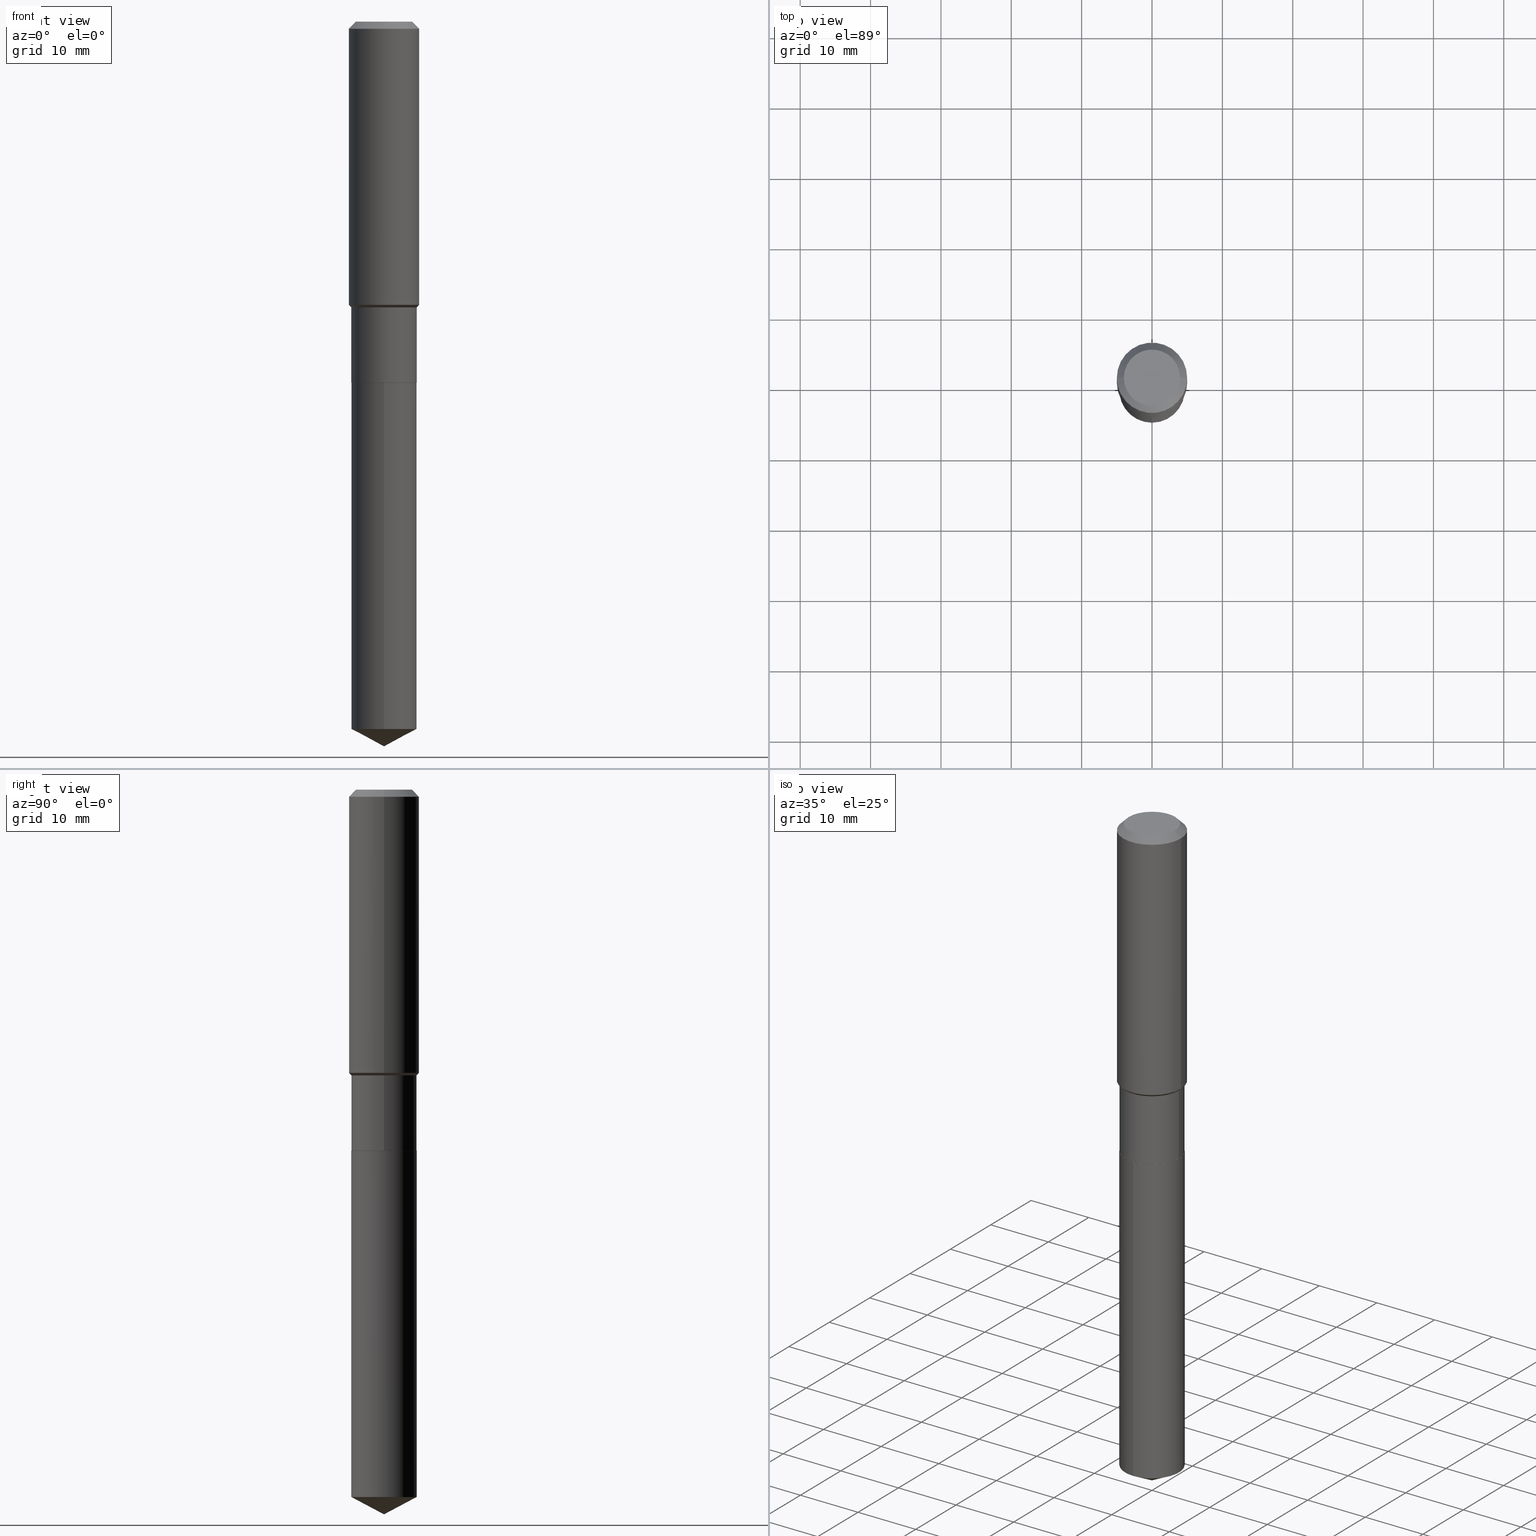
[diagram: canonical four-view strip — front | top / right | iso, engineering-drawing reading convention]
A machine part, canonical four-view strip (front | top / right | iso — engineering-drawing reading convention). The complete STEP part file that produces these views, byte-faithful:
ISO-10303-21;
HEADER;
FILE_DESCRIPTION (( 'STEP AP203' ),
    '1' );
FILE_NAME ('65223.STEP',
    '2024-04-24T21:36:22',
    ( '' ),
    ( '' ),
    'SwSTEP 2.0',
    'SolidWorks 2023',
    '' );
FILE_SCHEMA (( 'CONFIG_CONTROL_DESIGN' ));
ENDSEC;

DATA;
#1 = DIRECTION ( 'NONE',  ( 1.000000000000000000, -6.982962677686265922E-15, 0.000000000000000000 ) ) ;
#2 = FACE_OUTER_BOUND ( 'NONE', #45, .T. ) ;
#3 = CC_DESIGN_SECURITY_CLASSIFICATION ( #446, ( #374 ) ) ;
#4 = DIRECTION ( 'NONE',  ( 0.000000000000000000, 0.000000000000000000, 1.000000000000000000 ) ) ;
#5 = DIRECTION ( 'NONE',  ( -2.445468806185136597E-29, 3.491481338843145583E-15, 1.000000000000000000 ) ) ;
#6 = LINE ( 'NONE', #233, #108 ) ;
#7 = CC_DESIGN_PERSON_AND_ORGANIZATION_ASSIGNMENT ( #113, #193, ( #110 ) ) ;
#8 = ORIENTED_EDGE ( 'NONE', *, *, #369, .F. ) ;
#9 = CARTESIAN_POINT ( 'NONE',  ( 0.000000000000000000, 0.000000000000000000, 0.000000000000000000 ) ) ;
#10 = EDGE_CURVE ( 'NONE', #14, #320, #252, .T. ) ;
#11 = DIRECTION ( 'NONE',  ( -2.445468806185136597E-29, 3.491481338843145583E-15, 1.000000000000000000 ) ) ;
#12 = VERTEX_POINT ( 'NONE', #247 ) ;
#13 = CARTESIAN_POINT ( 'NONE',  ( -0.1968500000000002192, -4.134596250454857650E-15, -1.584799999999999764 ) ) ;
#14 = VERTEX_POINT ( 'NONE', #475 ) ;
#15 = DIRECTION ( 'NONE',  ( -2.445468806185136597E-29, 3.491481338843145583E-15, 1.000000000000000000 ) ) ;
#16 = ORIENTED_EDGE ( 'NONE', *, *, #220, .T. ) ;
#17 = DIRECTION ( 'NONE',  ( -6.165590087286837607E-15, -0.8829475928589268774, 0.4694715627858909723 ) ) ;
#18 = EDGE_CURVE ( 'NONE', #235, #352, #66, .T. ) ;
#19 = ORIENTED_EDGE ( 'NONE', *, *, #214, .T. ) ;
#20 = CARTESIAN_POINT ( 'NONE',  ( 0.1825499999999999623, -8.326135548739243343E-15, -2.019600000000000062 ) ) ;
#21 = CIRCLE ( 'NONE', #154, 0.1830499999999999905 ) ;
#22 = LINE ( 'NONE', #221, #322 ) ;
#23 = ORIENTED_EDGE ( 'NONE', *, *, #443, .F. ) ;
#24 = ADVANCED_FACE ( 'NONE', ( #219 ), #370, .T. ) ;
#25 = EDGE_LOOP ( 'NONE', ( #477, #428, #316, #482 ) ) ;
#26 = FACE_OUTER_BOUND ( 'NONE', #124, .T. ) ;
#27 = EDGE_CURVE ( 'NONE', #139, #326, #213, .T. ) ;
#28 = CIRCLE ( 'NONE', #91, 0.1968500000000000250 ) ;
#29 = LINE ( 'NONE', #485, #479 ) ;
#30 = EDGE_CURVE ( 'NONE', #139, #14, #22, .T. ) ;
#31 = DIRECTION ( 'NONE',  ( -6.982962677686264344E-15, -1.000000000000000000, 2.984810700534567995E-15 ) ) ;
#32 = PERSON_AND_ORGANIZATION ( #367, #180 ) ;
#33 = LINE ( 'NONE', #144, #255 ) ;
#34 = COORDINATED_UNIVERSAL_TIME_OFFSET ( 5, 0, .BEHIND. ) ;
#35 = AXIS2_PLACEMENT_3D ( 'NONE', #450, #4, #106 ) ;
#36 = DIRECTION ( 'NONE',  ( -2.445468806185136597E-29, 3.491481338843145583E-15, 1.000000000000000000 ) ) ;
#37 = CARTESIAN_POINT ( 'NONE',  ( 4.937646066568409466E-29, -7.049649971258195757E-15, -2.019099999999999895 ) ) ;
#38 = VECTOR ( 'NONE', #327, 39.37007874015748854 ) ;
#39 = DIRECTION ( 'NONE',  ( -6.982962677686265922E-15, -1.000000000000000000, 3.541896320645551402E-15 ) ) ;
#40 = APPROVAL ( #182, 'UNSPECIFIED' ) ;
#41 =( LENGTH_UNIT ( ) NAMED_UNIT ( * ) SI_UNIT ( $, .METRE. ) );
#42 = AXIS2_PLACEMENT_3D ( 'NONE', #476, #125, #350 ) ;
#43 = CONICAL_SURFACE ( 'NONE', #361, 0.1968500000000000250, 0.7853981633974447263 ) ;
#44 = EDGE_CURVE ( 'NONE', #253, #404, #294, .T. ) ;
#45 = EDGE_LOOP ( 'NONE', ( #155, #63, #422, #217 ) ) ;
#46 = CARTESIAN_POINT ( 'NONE',  ( 1.300648477808960353E-15, 0.1830499999999929406, -2.019600000000000506 ) ) ;
#47 = DATE_AND_TIME ( #388, #438 ) ;
#48 = ORIENTED_EDGE ( 'NONE', *, *, #103, .F. ) ;
#49 = LINE ( 'NONE', #168, #351 ) ;
#50 = APPROVAL ( #52, 'UNSPECIFIED' ) ;
#51 = AXIS2_PLACEMENT_3D ( 'NONE', #293, #68, #31 ) ;
#52 = APPROVAL_STATUS ( 'not_yet_approved' ) ;
#53 = EDGE_LOOP ( 'NONE', ( #229, #397, #215, #116 ) ) ;
#54 = DIRECTION ( 'NONE',  ( -2.445468806185136877E-29, 3.491481338843145188E-15, 1.000000000000000000 ) ) ;
#55 = AXIS2_PLACEMENT_3D ( 'NONE', #111, #336, #149 ) ;
#56 = ORIENTED_EDGE ( 'NONE', *, *, #191, .T. ) ;
#57 = DIRECTION ( 'NONE',  ( -2.445468806185136597E-29, 3.491481338843145583E-15, 1.000000000000000000 ) ) ;
#58 = PERSON_AND_ORGANIZATION ( #367, #180 ) ;
#59 = ORIENTED_EDGE ( 'NONE', *, *, #443, .T. ) ;
#60 = CARTESIAN_POINT ( 'NONE',  ( 0.000000000000000000, 0.000000000000000000, 0.000000000000000000 ) ) ;
#61 = ORIENTED_EDGE ( 'NONE', *, *, #251, .F. ) ;
#62 =( GEOMETRIC_REPRESENTATION_CONTEXT ( 3 ) GLOBAL_UNCERTAINTY_ASSIGNED_CONTEXT ( ( #171 ) ) GLOBAL_UNIT_ASSIGNED_CONTEXT ( ( #225, #335, #375 ) ) REPRESENTATION_CONTEXT ( 'NONE', 'WORKASPACE' ) );
#63 = ORIENTED_EDGE ( 'NONE', *, *, #305, .T. ) ;
#64 = APPROVAL_PERSON_ORGANIZATION ( #222, #364, #310 ) ;
#65 = CARTESIAN_POINT ( 'NONE',  ( 4.938868800971501707E-29, -7.051395711927616472E-15, -2.019600000000000062 ) ) ;
#66 = LINE ( 'NONE', #250, #38 ) ;
#67 = AXIS2_PLACEMENT_3D ( 'NONE', #353, #15, #280 ) ;
#68 = DIRECTION ( 'NONE',  ( -2.445495321874143772E-29, 3.491443366867307892E-15, 1.000000000000000000 ) ) ;
#69 = COORDINATED_UNIVERSAL_TIME_OFFSET ( 5, 0, .BEHIND. ) ;
#70 = AXIS2_PLACEMENT_3D ( 'NONE', #360, #287, #243 ) ;
#71 = CARTESIAN_POINT ( 'NONE',  ( 4.938868800971501707E-29, -7.051395711927616472E-15, -2.019600000000000062 ) ) ;
#72 = CARTESIAN_POINT ( 'NONE',  ( 9.627810689950954155E-31, -1.374596203102556547E-16, -0.03937000000000029365 ) ) ;
#73 = LENGTH_MEASURE_WITH_UNIT ( LENGTH_MEASURE( 0.02539999999999999897 ), #41 );
#74 = DIRECTION ( 'NONE',  ( 6.273719981627768443E-15, 0.8829475928589300970, 0.4694715627858847551 ) ) ;
#75 = CARTESIAN_POINT ( 'NONE',  ( 0.1968500000000000250, -1.487948651171581601E-15, -0.03937000000000029365 ) ) ;
#76 = CALENDAR_DATE ( 2024, 24, 4 ) ;
#77 = CIRCLE ( 'NONE', #78, 0.1574800000000000089 ) ;
#78 = AXIS2_PLACEMENT_3D ( 'NONE', #466, #434, #148 ) ;
#79 = VERTEX_POINT ( 'NONE', #442 ) ;
#80 = DIRECTION ( 'NONE',  ( 1.000000000000000000, -6.982962677686265922E-15, 0.000000000000000000 ) ) ;
#81 = CC_DESIGN_PERSON_AND_ORGANIZATION_ASSIGNMENT ( #384, #238, ( #446 ) ) ;
#82 = APPROVAL_DATE_TIME ( #274, #40 ) ;
#83 = EDGE_LOOP ( 'NONE', ( #268, #59 ) ) ;
#84 = CARTESIAN_POINT ( 'NONE',  ( 4.938868800971501707E-29, -7.051395711927616472E-15, -2.019600000000000062 ) ) ;
#85 = PERSON_AND_ORGANIZATION ( #367, #180 ) ;
#86 = VERTEX_POINT ( 'NONE', #439 ) ;
#87 = LINE ( 'NONE', #390, #109 ) ;
#88 = AXIS2_PLACEMENT_3D ( 'NONE', #455, #343, #39 ) ;
#89 = ORIENTED_EDGE ( 'NONE', *, *, #157, .F. ) ;
#90 = DIRECTION ( 'NONE',  ( -2.445495321874143772E-29, 3.491443366867307892E-15, 1.000000000000000000 ) ) ;
#91 = AXIS2_PLACEMENT_3D ( 'NONE', #341, #5, #80 ) ;
#92 = ORIENTED_EDGE ( 'NONE', *, *, #114, .T. ) ;
#93 = DIRECTION ( 'NONE',  ( -2.445468806185136597E-29, 3.491481338843145583E-15, 1.000000000000000000 ) ) ;
#94 = CARTESIAN_POINT ( 'NONE',  ( 0.1968500000000001082, -1.374596203102542397E-15, 9.598753983154305062E-30 ) ) ;
#95 = DIRECTION ( 'NONE',  ( -2.445495321874143772E-29, 3.491443366867307892E-15, 1.000000000000000000 ) ) ;
#96 = DESIGN_CONTEXT ( 'detailed design', #249, 'design' ) ;
#97 = EDGE_CURVE ( 'NONE', #318, #12, #332, .T. ) ;
#98 = ORIENTED_EDGE ( 'NONE', *, *, #220, .F. ) ;
#99 = AXIS2_PLACEMENT_3D ( 'NONE', #299, #451, #261 ) ;
#100 = VERTEX_POINT ( 'NONE', #101 ) ;
#101 = CARTESIAN_POINT ( 'NONE',  ( 0.1574800000000000089, -1.284169937930321189E-15, 3.855188123724205385E-18 ) ) ;
#102 = EDGE_LOOP ( 'NONE', ( #436, #196, #272 ) ) ;
#103 = EDGE_CURVE ( 'NONE', #400, #79, #29, .T. ) ;
#104 = AXIS2_PLACEMENT_3D ( 'NONE', #84, #276, #426 ) ;
#105 = DATE_AND_TIME ( #412, #424 ) ;
#106 = DIRECTION ( 'NONE',  ( 1.000000000000000000, 0.000000000000000000, 0.000000000000000000 ) ) ;
#107 = DIRECTION ( 'NONE',  ( -2.445468806185136597E-29, 3.491481338843145583E-15, 1.000000000000000000 ) ) ;
#108 = VECTOR ( 'NONE', #150, 39.37007874015748143 ) ;
#109 = VECTOR ( 'NONE', #54, 39.37007874015748143 ) ;
#110 = PRODUCT_DEFINITION ( 'UNKNOWN', '', #374, #96 ) ;
#111 = CARTESIAN_POINT ( 'NONE',  ( -4.713871149261283817E-47, 6.730158695841841775E-33, 1.927594061857935365E-18 ) ) ;
#112 = DIRECTION ( 'NONE',  ( -2.445495321874143772E-29, 3.491443366867307892E-15, 1.000000000000000000 ) ) ;
#113 = PERSON_AND_ORGANIZATION ( #367, #180 ) ;
#114 = EDGE_CURVE ( 'NONE', #320, #14, #260, .T. ) ;
#115 = PERSON_AND_ORGANIZATION ( #367, #180 ) ;
#116 = ORIENTED_EDGE ( 'NONE', *, *, #214, .F. ) ;
#117 = DIRECTION ( 'NONE',  ( -2.445468806185136597E-29, 3.491481338843145583E-15, 1.000000000000000000 ) ) ;
#118 = CC_DESIGN_DATE_AND_TIME_ASSIGNMENT ( #105, #371, ( #110 ) ) ;
#119 = CLOSED_SHELL ( 'NONE', ( #24, #169, #354, #314, #430 ) ) ;
#120 = AXIS2_PLACEMENT_3D ( 'NONE', #232, #93, #205 ) ;
#121 = ORIENTED_EDGE ( 'NONE', *, *, #311, .F. ) ;
#122 = DIRECTION ( 'NONE',  ( -2.445468806185136597E-29, 3.491481338843145583E-15, 1.000000000000000000 ) ) ;
#123 = APPROVAL_ROLE ( '' ) ;
#124 = EDGE_LOOP ( 'NONE', ( #204, #463 ) ) ;
#125 = DIRECTION ( 'NONE',  ( 2.445468806185136597E-29, -3.491481338843145583E-15, -1.000000000000000000 ) ) ;
#126 = CALENDAR_DATE ( 2024, 24, 4 ) ;
#127 = EDGE_CURVE ( 'NONE', #86, #282, #285, .T. ) ;
#128 = ORIENTED_EDGE ( 'NONE', *, *, #305, .F. ) ;
#129 = DIRECTION ( 'NONE',  ( 1.000000000000000000, -6.982962677686265922E-15, 4.876176775795935232E-29 ) ) ;
#130 = EDGE_LOOP ( 'NONE', ( #23, #16, #312, #231 ) ) ;
#131 = CARTESIAN_POINT ( 'NONE',  ( -0.1574800000000000089, 1.168406772637159618E-15, 3.855188123707939751E-18 ) ) ;
#132 = EDGE_CURVE ( 'NONE', #253, #279, #267, .T. ) ;
#133 = CONICAL_SURFACE ( 'NONE', #342, 0.1830499999999999350, 0.7853981633974482790 ) ;
#134 = CARTESIAN_POINT ( 'NONE',  ( 4.938868800971501707E-29, -7.051395711927616472E-15, -2.019600000000000062 ) ) ;
#135 = FACE_OUTER_BOUND ( 'NONE', #239, .T. ) ;
#136 = EDGE_LOOP ( 'NONE', ( #89, #19, #306, #458 ) ) ;
#137 = CARTESIAN_POINT ( 'NONE',  ( 0.1825499999999999623, -8.326135548739243343E-15, -2.019600000000000062 ) ) ;
#138 = AXIS2_PLACEMENT_3D ( 'NONE', #65, #368, #329 ) ;
#139 = VERTEX_POINT ( 'NONE', #151 ) ;
#140 = EDGE_LOOP ( 'NONE', ( #61, #179, #211 ) ) ;
#141 = DIRECTION ( 'NONE',  ( -2.445468806185136877E-29, 3.491481338843145188E-15, 1.000000000000000000 ) ) ;
#142 = DIRECTION ( 'NONE',  ( 1.000000000000000000, -6.982962677686265922E-15, 4.876176775795935232E-29 ) ) ;
#143 = PERSON_AND_ORGANIZATION ( #367, #180 ) ;
#144 = CARTESIAN_POINT ( 'NONE',  ( 0.1830499999999999350, -6.859713386425123547E-15, -1.598600000000000021 ) ) ;
#145 = DIRECTION ( 'NONE',  ( 1.000000000000000000, -6.982962677686265922E-15, 0.000000000000000000 ) ) ;
#146 = CIRCLE ( 'NONE', #447, 0.1830499999999999350 ) ;
#147 = DIRECTION ( 'NONE',  ( 0.7071067811865474617, -2.468850131082256666E-15, 0.7071067811865474617 ) ) ;
#148 = DIRECTION ( 'NONE',  ( 1.000000000000000000, -6.982962677686265922E-15, 4.876223630392693006E-29 ) ) ;
#149 = DIRECTION ( 'NONE',  ( -1.000000000000000000, 6.982962677686265922E-15, -4.876176775795935793E-29 ) ) ;
#150 = DIRECTION ( 'NONE',  ( -2.445468806185136877E-29, 3.491481338843145188E-15, 1.000000000000000000 ) ) ;
#151 = CARTESIAN_POINT ( 'NONE',  ( -1.278231318150373834E-15, -0.1830500000000137850, -3.957770588534366585 ) ) ;
#152 = VERTEX_POINT ( 'NONE', #183 ) ;
#153 = FACE_OUTER_BOUND ( 'NONE', #471, .T. ) ;
#154 = AXIS2_PLACEMENT_3D ( 'NONE', #37, #187, #145 ) ;
#155 = ORIENTED_EDGE ( 'NONE', *, *, #435, .F. ) ;
#156 = FACE_OUTER_BOUND ( 'NONE', #140, .T. ) ;
#157 = EDGE_CURVE ( 'NONE', #352, #12, #6, .T. ) ;
#158 = PERSON_AND_ORGANIZATION_ROLE ( 'design_supplier' ) ;
#159 = ORIENTED_EDGE ( 'NONE', *, *, #30, .F. ) ;
#160 = DIRECTION ( 'NONE',  ( -6.982962677686264344E-15, -1.000000000000000000, 2.984810700534567995E-15 ) ) ;
#161 = CC_DESIGN_PERSON_AND_ORGANIZATION_ASSIGNMENT ( #85, #228, ( #374 ) ) ;
#162 = LOCAL_TIME ( 17, 36, 22.00000000000000000, #69 ) ;
#163 = EDGE_LOOP ( 'NONE', ( #363, #226, #218, #408 ) ) ;
#164 = FACE_OUTER_BOUND ( 'NONE', #130, .T. ) ;
#165 = CIRCLE ( 'NONE', #175, 0.1830499999999999905 ) ;
#166 = CALENDAR_DATE ( 2024, 24, 4 ) ;
#167 = ORIENTED_EDGE ( 'NONE', *, *, #300, .T. ) ;
#168 = CARTESIAN_POINT ( 'NONE',  ( 9.916620977560802694E-29, -1.415830537338842457E-14, -4.055100000000000371 ) ) ;
#169 = ADVANCED_FACE ( 'NONE', ( #198 ), #301, .T. ) ;
#170 = AXIS2_PLACEMENT_3D ( 'NONE', #72, #224, #373 ) ;
#171 = UNCERTAINTY_MEASURE_WITH_UNIT (LENGTH_MEASURE( 1.000000000000000082E-05 ), #225, 'distance_accuracy_value', 'NONE');
#172 = CARTESIAN_POINT ( 'NONE',  ( 4.938868800971501707E-29, -7.051395711927616472E-15, -2.019600000000000062 ) ) ;
#173 = EDGE_LOOP ( 'NONE', ( #421, #200, #345, #159 ) ) ;
#174 = CARTESIAN_POINT ( 'NONE',  ( 4.938868800971501707E-29, -7.051395711927616472E-15, -2.019600000000000062 ) ) ;
#175 = AXIS2_PLACEMENT_3D ( 'NONE', #380, #112, #309 ) ;
#176 = DIRECTION ( 'NONE',  ( -2.445468806185136597E-29, 3.491481338843145583E-15, 1.000000000000000000 ) ) ;
#177 = DIRECTION ( 'NONE',  ( 0.7071067811865450192, -7.319954787623246579E-15, -0.7071067811865500152 ) ) ;
#178 = CONICAL_SURFACE ( 'NONE', #379, 0.1825499999999999623, 0.7853981633975507526 ) ;
#179 = ORIENTED_EDGE ( 'NONE', *, *, #410, .T. ) ;
#180 = ORGANIZATION ( 'UNSPECIFIED', 'UNSPECIFIED', '' ) ;
#181 = DIRECTION ( 'NONE',  ( -0.7071067811866199593, 7.493145998870616062E-15, 0.7071067811864750752 ) ) ;
#182 = APPROVAL_STATUS ( 'not_yet_approved' ) ;
#183 = CARTESIAN_POINT ( 'NONE',  ( 9.916728079731841685E-29, -1.415815199698362107E-14, -4.055100000000000371 ) ) ;
#184 = EDGE_CURVE ( 'NONE', #326, #139, #165, .T. ) ;
#185 = CONICAL_SURFACE ( 'NONE', #409, 74.04434902938373853, 1.082104136236487602 ) ;
#186 = DATE_AND_TIME ( #76, #308 ) ;
#187 = DIRECTION ( 'NONE',  ( -2.445468806185136597E-29, 3.491481338843145583E-15, 1.000000000000000000 ) ) ;
#188 = ADVANCED_BREP_SHAPE_REPRESENTATION ( '65223', ( #444, #278, #35 ), #62 ) ;
#189 = APPLICATION_PROTOCOL_DEFINITION ( 'international standard', 'config_control_design', 1994, #391 ) ;
#190 = PLANE ( 'NONE',  #55 ) ;
#191 = EDGE_CURVE ( 'NONE', #79, #235, #146, .T. ) ;
#192 = AXIS2_PLACEMENT_3D ( 'NONE', #60, #356, #129 ) ;
#193 = PERSON_AND_ORGANIZATION_ROLE ( 'creator' ) ;
#194 = DIRECTION ( 'NONE',  ( 1.000000000000000000, -6.982962677686267499E-15, 0.000000000000000000 ) ) ;
#195 = CC_DESIGN_APPROVAL ( #364, ( #110 ) ) ;
#196 = ORIENTED_EDGE ( 'NONE', *, *, #251, .T. ) ;
#197 = CARTESIAN_POINT ( 'NONE',  ( 1.300648477808959564E-15, 0.1830499999999861127, -3.957770588534367917 ) ) ;
#198 = FACE_OUTER_BOUND ( 'NONE', #102, .T. ) ;
#199 = SHAPE_DEFINITION_REPRESENTATION ( #461, #188 ) ;
#200 = ORIENTED_EDGE ( 'NONE', *, *, #311, .T. ) ;
#201 = DIRECTION ( 'NONE',  ( 1.000000000000000000, -6.982962677686267499E-15, 0.000000000000000000 ) ) ;
#202 = AXIS2_PLACEMENT_3D ( 'NONE', #134, #176, #288 ) ;
#203 = CIRCLE ( 'NONE', #474, 0.1830499999999999350 ) ;
#204 = ORIENTED_EDGE ( 'NONE', *, *, #460, .F. ) ;
#205 = DIRECTION ( 'NONE',  ( 1.000000000000000000, -6.982962677686267499E-15, 0.000000000000000000 ) ) ;
#206 = EDGE_CURVE ( 'NONE', #318, #100, #77, .T. ) ;
#207 = SECURITY_CLASSIFICATION_LEVEL ( 'unclassified' ) ;
#208 = ORIENTED_EDGE ( 'NONE', *, *, #44, .T. ) ;
#209 = DIRECTION ( 'NONE',  ( 1.000000000000000000, -6.982962677686265922E-15, 0.000000000000000000 ) ) ;
#210 = COORDINATED_UNIVERSAL_TIME_OFFSET ( 5, 0, .BEHIND. ) ;
#211 = ORIENTED_EDGE ( 'NONE', *, *, #184, .F. ) ;
#212 = CYLINDRICAL_SURFACE ( 'NONE', #315, 0.1968500000000001082 ) ;
#213 = CIRCLE ( 'NONE', #420, 0.1830499999999999905 ) ;
#214 = EDGE_CURVE ( 'NONE', #352, #86, #372, .T. ) ;
#215 = ORIENTED_EDGE ( 'NONE', *, *, #270, .T. ) ;
#216 = AXIS2_PLACEMENT_3D ( 'NONE', #416, #36, #257 ) ;
#217 = ORIENTED_EDGE ( 'NONE', *, *, #399, .F. ) ;
#218 = ORIENTED_EDGE ( 'NONE', *, *, #256, .F. ) ;
#219 = FACE_OUTER_BOUND ( 'NONE', #173, .T. ) ;
#220 = EDGE_CURVE ( 'NONE', #100, #282, #401, .T. ) ;
#221 = CARTESIAN_POINT ( 'NONE',  ( -1.278231318150421166E-15, -0.1830500000000070127, -2.019599999999999618 ) ) ;
#222 = PERSON_AND_ORGANIZATION ( #367, #180 ) ;
#223 = CYLINDRICAL_SURFACE ( 'NONE', #216, 0.1968500000000001082 ) ;
#224 = DIRECTION ( 'NONE',  ( -2.445468806185136597E-29, 3.491481338843145583E-15, 1.000000000000000000 ) ) ;
#225 =( CONVERSION_BASED_UNIT ( 'INCH', #73 ) LENGTH_UNIT ( ) NAMED_UNIT ( #331 ) );
#226 = ORIENTED_EDGE ( 'NONE', *, *, #157, .T. ) ;
#227 = PRODUCT ( '65223', '65223', '', ( #338 ) ) ;
#228 = PERSON_AND_ORGANIZATION_ROLE ( 'creator' ) ;
#229 = ORIENTED_EDGE ( 'NONE', *, *, #18, .F. ) ;
#230 = FACE_OUTER_BOUND ( 'NONE', #389, .T. ) ;
#231 = ORIENTED_EDGE ( 'NONE', *, *, #97, .F. ) ;
#232 = CARTESIAN_POINT ( 'NONE',  ( 3.909326433567559047E-29, -5.581482068274652880E-15, -1.598600000000000021 ) ) ;
#233 = CARTESIAN_POINT ( 'NONE',  ( -0.1968500000000001082, 1.398703375343757985E-15, -9.682923725166787881E-30 ) ) ;
#234 = VECTOR ( 'NONE', #177, 39.37007874015748143 ) ;
#235 = VERTEX_POINT ( 'NONE', #265 ) ;
#236 = DIRECTION ( 'NONE',  ( 2.445468806185136597E-29, -3.491481338843145583E-15, -1.000000000000000000 ) ) ;
#237 = ADVANCED_FACE ( 'NONE', ( #453 ), #190, .F. ) ;
#238 = PERSON_AND_ORGANIZATION_ROLE ( 'classification_officer' ) ;
#239 = EDGE_LOOP ( 'NONE', ( #467, #92 ) ) ;
#240 = CARTESIAN_POINT ( 'NONE',  ( 3.909326433567559047E-29, -5.581482068274652880E-15, -1.598600000000000021 ) ) ;
#241 = CC_DESIGN_PERSON_AND_ORGANIZATION_ASSIGNMENT ( #143, #377, ( #227 ) ) ;
#242 = ORIENTED_EDGE ( 'NONE', *, *, #184, .T. ) ;
#243 = DIRECTION ( 'NONE',  ( 1.000000000000000000, -6.982962677686265922E-15, 0.000000000000000000 ) ) ;
#244 = APPROVAL_PERSON_ORGANIZATION ( #58, #50, #123 ) ;
#245 = CARTESIAN_POINT ( 'NONE',  ( -0.1825499999999999623, -5.754299947797554442E-15, -2.019600000000000062 ) ) ;
#246 = CARTESIAN_POINT ( 'NONE',  ( -0.1968500000000000250, 1.237136582792286225E-15, -0.03937000000000029365 ) ) ;
#247 = CARTESIAN_POINT ( 'NONE',  ( -0.1968500000000000250, -1.436676247710677524E-15, -0.03937000000000029365 ) ) ;
#248 = EDGE_CURVE ( 'NONE', #400, #279, #297, .T. ) ;
#249 = APPLICATION_CONTEXT ( 'configuration controlled 3d designs of mechanical parts and assemblies' ) ;
#250 = CARTESIAN_POINT ( 'NONE',  ( -0.1830499999999999350, -4.280833590465789952E-15, -1.598600000000000021 ) ) ;
#251 = EDGE_CURVE ( 'NONE', #152, #326, #489, .T. ) ;
#252 = CIRCLE ( 'NONE', #289, 0.1830499999999999905 ) ;
#253 = VERTEX_POINT ( 'NONE', #269 ) ;
#254 = AXIS2_PLACEMENT_3D ( 'NONE', #319, #429, #486 ) ;
#255 = VECTOR ( 'NONE', #147, 39.37007874015748854 ) ;
#256 = EDGE_CURVE ( 'NONE', #282, #12, #28, .T. ) ;
#257 = DIRECTION ( 'NONE',  ( 1.000000000000000000, -6.982962677686266711E-15, 4.876176775795935793E-29 ) ) ;
#258 = ADVANCED_FACE ( 'NONE', ( #2 ), #414, .T. ) ;
#259 = APPROVAL_ROLE ( '' ) ;
#260 = CIRCLE ( 'NONE', #51, 0.1830499999999999905 ) ;
#261 = DIRECTION ( 'NONE',  ( 1.000000000000000000, -6.982962677686264344E-15, 0.000000000000000000 ) ) ;
#262 = CONICAL_SURFACE ( 'NONE', #42, 0.1968500000000000250, 0.7853981633974447263 ) ;
#263 = FACE_OUTER_BOUND ( 'NONE', #136, .T. ) ;
#264 = CARTESIAN_POINT ( 'NONE',  ( 1.300648477808912429E-15, 0.1830499999999929406, -2.019600000000000506 ) ) ;
#265 = CARTESIAN_POINT ( 'NONE',  ( -0.1830499999999999350, -5.014917541957560996E-15, -1.598600000000000021 ) ) ;
#266 = CC_DESIGN_PERSON_AND_ORGANIZATION_ASSIGNMENT ( #115, #158, ( #374 ) ) ;
#267 = LINE ( 'NONE', #245, #376 ) ;
#268 = ORIENTED_EDGE ( 'NONE', *, *, #206, .T. ) ;
#269 = CARTESIAN_POINT ( 'NONE',  ( -0.1825499999999999623, -5.751650720623443241E-15, -2.019600000000000062 ) ) ;
#270 = EDGE_CURVE ( 'NONE', #79, #86, #33, .T. ) ;
#271 = VECTOR ( 'NONE', #90, 39.37007874015748143 ) ;
#272 = ORIENTED_EDGE ( 'NONE', *, *, #27, .F. ) ;
#273 = CYLINDRICAL_SURFACE ( 'NONE', #304, 0.1830499999999999905 ) ;
#274 = DATE_AND_TIME ( #126, #162 ) ;
#275 = ORIENTED_EDGE ( 'NONE', *, *, #270, .F. ) ;
#276 = DIRECTION ( 'NONE',  ( 2.445495321874143492E-29, -3.491443366867307892E-15, -1.000000000000000000 ) ) ;
#277 = COORDINATED_UNIVERSAL_TIME_OFFSET ( 5, 0, .BEHIND. ) ;
#278 = MANIFOLD_SOLID_BREP ( 'Body-Move/Copy2[2]', #334 ) ;
#279 = VERTEX_POINT ( 'NONE', #307 ) ;
#280 = DIRECTION ( 'NONE',  ( 1.000000000000000000, -6.982962677686265922E-15, 4.876223630392693006E-29 ) ) ;
#281 = AXIS2_PLACEMENT_3D ( 'NONE', #339, #107, #142 ) ;
#282 = VERTEX_POINT ( 'NONE', #378 ) ;
#283 = CARTESIAN_POINT ( 'NONE',  ( 9.627810689950954155E-31, -1.374596203102556547E-16, -0.03937000000000029365 ) ) ;
#284 = ADVANCED_FACE ( 'NONE', ( #413 ), #440, .T. ) ;
#285 = LINE ( 'NONE', #94, #328 ) ;
#286 = PLANE ( 'NONE',  #104 ) ;
#287 = DIRECTION ( 'NONE',  ( -2.445468806185136597E-29, 3.491481338843145583E-15, 1.000000000000000000 ) ) ;
#288 = DIRECTION ( 'NONE',  ( 1.000000000000000000, -6.982962677686264344E-15, 0.000000000000000000 ) ) ;
#289 = AXIS2_PLACEMENT_3D ( 'NONE', #172, #445, #406 ) ;
#290 = ORIENTED_EDGE ( 'NONE', *, *, #191, .F. ) ;
#291 = CONICAL_SURFACE ( 'NONE', #120, 0.1830499999999999350, 0.7853981633974482790 ) ;
#292 = DIRECTION ( 'NONE',  ( -6.982962677686264344E-15, -1.000000000000000000, 2.984810700534567995E-15 ) ) ;
#293 = CARTESIAN_POINT ( 'NONE',  ( 4.938868800971501707E-29, -7.051395711927616472E-15, -2.019600000000000062 ) ) ;
#294 = CIRCLE ( 'NONE', #202, 0.1825499999999999623 ) ;
#295 = DIRECTION ( 'NONE',  ( -2.445468806185136877E-29, 3.491481338843145188E-15, 1.000000000000000000 ) ) ;
#296 = DIRECTION ( 'NONE',  ( 1.000000000000000000, -6.982962677686265922E-15, 4.876176775795935793E-29 ) ) ;
#297 = CIRCLE ( 'NONE', #337, 0.1830499999999999905 ) ;
#298 = APPROVAL_DATE_TIME ( #186, #364 ) ;
#299 = CARTESIAN_POINT ( 'NONE',  ( 4.938868800971501707E-29, -7.051395711927616472E-15, -2.019600000000000062 ) ) ;
#300 = EDGE_CURVE ( 'NONE', #12, #282, #488, .T. ) ;
#301 = CONICAL_SURFACE ( 'NONE', #88, 74.04434902938373853, 1.082104136236487602 ) ;
#302 = FACE_OUTER_BOUND ( 'NONE', #25, .T. ) ;
#303 = LINE ( 'NONE', #264, #271 ) ;
#304 = AXIS2_PLACEMENT_3D ( 'NONE', #383, #433, #160 ) ;
#305 = EDGE_CURVE ( 'NONE', #279, #400, #21, .T. ) ;
#306 = ORIENTED_EDGE ( 'NONE', *, *, #127, .T. ) ;
#307 = CARTESIAN_POINT ( 'NONE',  ( -0.1830499999999999905, -5.014917541957560996E-15, -2.019099999999999895 ) ) ;
#308 = LOCAL_TIME ( 17, 36, 22.00000000000000000, #34 ) ;
#309 = DIRECTION ( 'NONE',  ( -6.982962677686264344E-15, -1.000000000000000000, 2.984810700534567995E-15 ) ) ;
#310 = APPROVAL_ROLE ( '' ) ;
#311 = EDGE_CURVE ( 'NONE', #326, #320, #303, .T. ) ;
#312 = ORIENTED_EDGE ( 'NONE', *, *, #256, .T. ) ;
#313 = DIRECTION ( 'NONE',  ( -1.000000000000000000, 6.982962677686265922E-15, 0.000000000000000000 ) ) ;
#314 = ADVANCED_FACE ( 'NONE', ( #230 ), #273, .T. ) ;
#315 = AXIS2_PLACEMENT_3D ( 'NONE', #9, #317, #437 ) ;
#316 = ORIENTED_EDGE ( 'NONE', *, *, #248, .F. ) ;
#317 = DIRECTION ( 'NONE',  ( -2.445468806185136597E-29, 3.491481338843145583E-15, 1.000000000000000000 ) ) ;
#318 = VERTEX_POINT ( 'NONE', #131 ) ;
#319 = CARTESIAN_POINT ( 'NONE',  ( 4.938868800971501707E-29, -7.051395711927616472E-15, -2.019600000000000062 ) ) ;
#320 = VERTEX_POINT ( 'NONE', #46 ) ;
#321 = CARTESIAN_POINT ( 'NONE',  ( 3.875578964042203780E-29, -5.533299625798616226E-15, -1.584799999999999764 ) ) ;
#322 = VECTOR ( 'NONE', #365, 39.37007874015748143 ) ;
#323 = AXIS2_PLACEMENT_3D ( 'NONE', #321, #472, #209 ) ;
#324 = DIRECTION ( 'NONE',  ( -0.7071067811865450192, 2.468850131082230634E-15, -0.7071067811865500152 ) ) ;
#325 = CYLINDRICAL_SURFACE ( 'NONE', #192, 0.1830499999999999905 ) ;
#326 = VERTEX_POINT ( 'NONE', #197 ) ;
#327 = DIRECTION ( 'NONE',  ( -0.7071067811865474617, 7.493145998870352582E-15, 0.7071067811865474617 ) ) ;
#328 = VECTOR ( 'NONE', #295, 39.37007874015748143 ) ;
#329 = DIRECTION ( 'NONE',  ( -6.982962677686264344E-15, -1.000000000000000000, 2.984810700534567995E-15 ) ) ;
#330 = DIRECTION ( 'NONE',  ( -2.438088387897960049E-29, 3.491481338843145188E-15, 1.000000000000000000 ) ) ;
#331 = DIMENSIONAL_EXPONENTS ( 1.000000000000000000, 0.000000000000000000, 0.000000000000000000, 0.000000000000000000, 0.000000000000000000, 0.000000000000000000, 0.000000000000000000 ) ;
#332 = LINE ( 'NONE', #246, #487 ) ;
#333 = ADVANCED_FACE ( 'NONE', ( #423 ), #43, .T. ) ;
#334 = CLOSED_SHELL ( 'NONE', ( #484, #419, #392, #344, #396, #258, #340, #490, #333, #237, #473, #284 ) ) ;
#335 =( NAMED_UNIT ( * ) PLANE_ANGLE_UNIT ( ) SI_UNIT ( $, .RADIAN. ) );
#336 = DIRECTION ( 'NONE',  ( 2.438088387897960049E-29, -3.491481338843145188E-15, -1.000000000000000000 ) ) ;
#337 = AXIS2_PLACEMENT_3D ( 'NONE', #459, #117, #1 ) ;
#338 = MECHANICAL_CONTEXT ( 'NONE', #391, 'mechanical' ) ;
#339 = CARTESIAN_POINT ( 'NONE',  ( 0.000000000000000000, 0.000000000000000000, 0.000000000000000000 ) ) ;
#340 = ADVANCED_FACE ( 'NONE', ( #395 ), #291, .T. ) ;
#341 = CARTESIAN_POINT ( 'NONE',  ( 9.627810689950954155E-31, -1.374596203102556547E-16, -0.03937000000000029365 ) ) ;
#342 = AXIS2_PLACEMENT_3D ( 'NONE', #240, #57, #470 ) ;
#343 = DIRECTION ( 'NONE',  ( -2.445495321874143772E-29, 3.491443366867307892E-15, 1.000000000000000000 ) ) ;
#344 = ADVANCED_FACE ( 'NONE', ( #346 ), #133, .T. ) ;
#345 = ORIENTED_EDGE ( 'NONE', *, *, #10, .F. ) ;
#346 = FACE_OUTER_BOUND ( 'NONE', #457, .T. ) ;
#347 = CARTESIAN_POINT ( 'NONE',  ( 3.909326433567559047E-29, -5.581482068274652880E-15, -1.598600000000000021 ) ) ;
#348 = CC_DESIGN_APPROVAL ( #40, ( #374 ) ) ;
#349 = ORIENTED_EDGE ( 'NONE', *, *, #30, .T. ) ;
#350 = DIRECTION ( 'NONE',  ( -1.000000000000000000, 6.982962677686265922E-15, 0.000000000000000000 ) ) ;
#351 = VECTOR ( 'NONE', #17, 39.37007874015748854 ) ;
#352 = VERTEX_POINT ( 'NONE', #13 ) ;
#353 = CARTESIAN_POINT ( 'NONE',  ( -9.427742298522567634E-47, 1.346031739168368355E-32, 3.855188123715870730E-18 ) ) ;
#354 = ADVANCED_FACE ( 'NONE', ( #156 ), #185, .T. ) ;
#355 = ORIENTED_EDGE ( 'NONE', *, *, #206, .F. ) ;
#356 = DIRECTION ( 'NONE',  ( -2.445468806185136597E-29, 3.491481338843145583E-15, 1.000000000000000000 ) ) ;
#357 = DATE_AND_TIME ( #166, #402 ) ;
#358 = EDGE_LOOP ( 'NONE', ( #469, #208, #441, #128 ) ) ;
#359 = CARTESIAN_POINT ( 'NONE',  ( 0.1830499999999999905, -8.327881289408665635E-15, -2.019099999999999895 ) ) ;
#360 = CARTESIAN_POINT ( 'NONE',  ( 3.875578964042203780E-29, -5.533299625798616226E-15, -1.584799999999999764 ) ) ;
#361 = AXIS2_PLACEMENT_3D ( 'NONE', #283, #236, #313 ) ;
#362 = DIRECTION ( 'NONE',  ( -2.445495321874143772E-29, 3.491443366867307892E-15, 1.000000000000000000 ) ) ;
#363 = ORIENTED_EDGE ( 'NONE', *, *, #369, .T. ) ;
#364 = APPROVAL ( #417, 'UNSPECIFIED' ) ;
#365 = DIRECTION ( 'NONE',  ( -2.445495321874143772E-29, 3.491443366867307892E-15, 1.000000000000000000 ) ) ;
#366 = CC_DESIGN_APPROVAL ( #50, ( #446 ) ) ;
#367 = PERSON ( 'UNSPECIFIED', 'UNSPECIFIED', 'UNSPECIFIED', ('UNSPECIFIED'), ('UNSPECIFIED'), ('UNSPECIFIED') ) ;
#368 = DIRECTION ( 'NONE',  ( -2.445495321874143772E-29, 3.491443366867307892E-15, 1.000000000000000000 ) ) ;
#369 = EDGE_CURVE ( 'NONE', #86, #352, #465, .T. ) ;
#370 = CYLINDRICAL_SURFACE ( 'NONE', #138, 0.1830499999999999905 ) ;
#371 = DATE_TIME_ROLE ( 'creation_date' ) ;
#372 = CIRCLE ( 'NONE', #70, 0.1968500000000002192 ) ;
#373 = DIRECTION ( 'NONE',  ( 1.000000000000000000, -6.982962677686265922E-15, 0.000000000000000000 ) ) ;
#374 = PRODUCT_DEFINITION_FORMATION_WITH_SPECIFIED_SOURCE ( 'ANY', '', #227, .NOT_KNOWN. ) ;
#375 =( NAMED_UNIT ( * ) SI_UNIT ( $, .STERADIAN. ) SOLID_ANGLE_UNIT ( ) );
#376 = VECTOR ( 'NONE', #181, 39.37007874015748143 ) ;
#377 = PERSON_AND_ORGANIZATION_ROLE ( 'design_owner' ) ;
#378 = CARTESIAN_POINT ( 'NONE',  ( 0.1968500000000000250, -1.512055823412797189E-15, -0.03937000000000029365 ) ) ;
#379 = AXIS2_PLACEMENT_3D ( 'NONE', #71, #411, #452 ) ;
#380 = CARTESIAN_POINT ( 'NONE',  ( 9.678655908226353486E-29, -1.381840855712323955E-14, -3.957770588534367029 ) ) ;
#381 = CC_DESIGN_DATE_AND_TIME_ASSIGNMENT ( #47, #427, ( #446 ) ) ;
#382 = EDGE_LOOP ( 'NONE', ( #98, #355, #385, #167 ) ) ;
#383 = CARTESIAN_POINT ( 'NONE',  ( 4.938868800971501707E-29, -7.051395711927616472E-15, -2.019600000000000062 ) ) ;
#384 = PERSON_AND_ORGANIZATION ( #367, #180 ) ;
#385 = ORIENTED_EDGE ( 'NONE', *, *, #97, .T. ) ;
#386 = DIRECTION ( 'NONE',  ( -6.982962677686265922E-15, -1.000000000000000000, 3.541896320645551402E-15 ) ) ;
#387 = APPROVAL_PERSON_ORGANIZATION ( #32, #40, #259 ) ;
#388 = CALENDAR_DATE ( 2024, 24, 4 ) ;
#389 = EDGE_LOOP ( 'NONE', ( #121, #242, #349, #405 ) ) ;
#390 = CARTESIAN_POINT ( 'NONE',  ( -0.1830499999999999905, 1.300648477808863323E-15, -9.004110682711603988E-30 ) ) ;
#391 = APPLICATION_CONTEXT ( 'configuration controlled 3d designs of mechanical parts and assemblies' ) ;
#392 = ADVANCED_FACE ( 'NONE', ( #398 ), #212, .T. ) ;
#393 = VECTOR ( 'NONE', #483, 39.37007874015748143 ) ;
#394 = ORIENTED_EDGE ( 'NONE', *, *, #248, .T. ) ;
#395 = FACE_OUTER_BOUND ( 'NONE', #53, .T. ) ;
#396 = ADVANCED_FACE ( 'NONE', ( #153 ), #325, .T. ) ;
#397 = ORIENTED_EDGE ( 'NONE', *, *, #399, .T. ) ;
#398 = FACE_OUTER_BOUND ( 'NONE', #163, .T. ) ;
#399 = EDGE_CURVE ( 'NONE', #235, #79, #203, .T. ) ;
#400 = VERTEX_POINT ( 'NONE', #359 ) ;
#401 = LINE ( 'NONE', #75, #234 ) ;
#402 = LOCAL_TIME ( 17, 36, 22.00000000000000000, #277 ) ;
#403 = PRODUCT_RELATED_PRODUCT_CATEGORY ( 'detail', '', ( #227 ) ) ;
#404 = VERTEX_POINT ( 'NONE', #20 ) ;
#405 = ORIENTED_EDGE ( 'NONE', *, *, #114, .F. ) ;
#406 = DIRECTION ( 'NONE',  ( -6.982962677686264344E-15, -1.000000000000000000, 2.984810700534567995E-15 ) ) ;
#407 = PLANE ( 'NONE',  #431 ) ;
#408 = ORIENTED_EDGE ( 'NONE', *, *, #127, .F. ) ;
#409 = AXIS2_PLACEMENT_3D ( 'NONE', #468, #95, #386 ) ;
#410 = EDGE_CURVE ( 'NONE', #152, #139, #49, .T. ) ;
#411 = DIRECTION ( 'NONE',  ( -2.445468806185136597E-29, 3.491481338843145583E-15, 1.000000000000000000 ) ) ;
#412 = CALENDAR_DATE ( 2024, 24, 4 ) ;
#413 = FACE_OUTER_BOUND ( 'NONE', #358, .T. ) ;
#414 = CYLINDRICAL_SURFACE ( 'NONE', #281, 0.1830499999999999905 ) ;
#415 = CIRCLE ( 'NONE', #67, 0.1574800000000000089 ) ;
#416 = CARTESIAN_POINT ( 'NONE',  ( 0.000000000000000000, 0.000000000000000000, 0.000000000000000000 ) ) ;
#417 = APPROVAL_STATUS ( 'not_yet_approved' ) ;
#418 = CARTESIAN_POINT ( 'NONE',  ( 9.916729018891456691E-29, -1.415815199698362107E-14, -4.055100000000000371 ) ) ;
#419 = ADVANCED_FACE ( 'NONE', ( #164 ), #262, .T. ) ;
#420 = AXIS2_PLACEMENT_3D ( 'NONE', #478, #362, #292 ) ;
#421 = ORIENTED_EDGE ( 'NONE', *, *, #27, .T. ) ;
#422 = ORIENTED_EDGE ( 'NONE', *, *, #103, .T. ) ;
#423 = FACE_OUTER_BOUND ( 'NONE', #382, .T. ) ;
#424 = LOCAL_TIME ( 17, 36, 22.00000000000000000, #449 ) ;
#425 = ORIENTED_EDGE ( 'NONE', *, *, #18, .T. ) ;
#426 = DIRECTION ( 'NONE',  ( 6.982962677686265922E-15, 1.000000000000000000, -3.491443366867307892E-15 ) ) ;
#427 = DATE_TIME_ROLE ( 'classification_date' ) ;
#428 = ORIENTED_EDGE ( 'NONE', *, *, #132, .T. ) ;
#429 = DIRECTION ( 'NONE',  ( -2.445468806185136597E-29, 3.491481338843145583E-15, 1.000000000000000000 ) ) ;
#430 = ADVANCED_FACE ( 'NONE', ( #135 ), #286, .F. ) ;
#431 = AXIS2_PLACEMENT_3D ( 'NONE', #174, #330, #296 ) ;
#432 = ORIENTED_EDGE ( 'NONE', *, *, #435, .T. ) ;
#433 = DIRECTION ( 'NONE',  ( -2.445495321874143772E-29, 3.491443366867307892E-15, 1.000000000000000000 ) ) ;
#434 = DIRECTION ( 'NONE',  ( -2.445468806185136597E-29, 3.491481338843145583E-15, 1.000000000000000000 ) ) ;
#435 = EDGE_CURVE ( 'NONE', #279, #235, #87, .T. ) ;
#436 = ORIENTED_EDGE ( 'NONE', *, *, #410, .F. ) ;
#437 = DIRECTION ( 'NONE',  ( 1.000000000000000000, -6.982962677686266711E-15, 4.876176775795935793E-29 ) ) ;
#438 = LOCAL_TIME ( 17, 36, 22.00000000000000000, #210 ) ;
#439 = CARTESIAN_POINT ( 'NONE',  ( 0.1968500000000002192, -6.907895828901160201E-15, -1.584799999999999764 ) ) ;
#440 = CONICAL_SURFACE ( 'NONE', #99, 0.1825499999999999623, 0.7853981633975507526 ) ;
#441 = ORIENTED_EDGE ( 'NONE', *, *, #480, .T. ) ;
#442 = CARTESIAN_POINT ( 'NONE',  ( 0.1830499999999999350, -6.859713386425123547E-15, -1.598600000000000021 ) ) ;
#443 = EDGE_CURVE ( 'NONE', #100, #318, #415, .T. ) ;
#444 = MANIFOLD_SOLID_BREP ( 'Body-Move/Copy2[1]', #119 ) ;
#445 = DIRECTION ( 'NONE',  ( -2.445495321874143772E-29, 3.491443366867307892E-15, 1.000000000000000000 ) ) ;
#446 = SECURITY_CLASSIFICATION ( '', '', #207 ) ;
#447 = AXIS2_PLACEMENT_3D ( 'NONE', #347, #11, #194 ) ;
#448 = LINE ( 'NONE', #137, #393 ) ;
#449 = COORDINATED_UNIVERSAL_TIME_OFFSET ( 5, 0, .BEHIND. ) ;
#450 = CARTESIAN_POINT ( 'NONE',  ( 0.000000000000000000, 0.000000000000000000, 0.000000000000000000 ) ) ;
#451 = DIRECTION ( 'NONE',  ( -2.445468806185136597E-29, 3.491481338843145583E-15, 1.000000000000000000 ) ) ;
#452 = DIRECTION ( 'NONE',  ( 1.000000000000000000, -6.982962677686264344E-15, 0.000000000000000000 ) ) ;
#453 = FACE_OUTER_BOUND ( 'NONE', #83, .T. ) ;
#454 = VECTOR ( 'NONE', #74, 39.37007874015748854 ) ;
#455 = CARTESIAN_POINT ( 'NONE',  ( -8.636266885222548110E-28, 1.233001715851804177E-13, 35.31497874015747840 ) ) ;
#456 = APPLICATION_PROTOCOL_DEFINITION ( 'international standard', 'config_control_design', 1994, #249 ) ;
#457 = EDGE_LOOP ( 'NONE', ( #56, #425, #8, #275 ) ) ;
#458 = ORIENTED_EDGE ( 'NONE', *, *, #300, .F. ) ;
#459 = CARTESIAN_POINT ( 'NONE',  ( 4.937646066568409466E-29, -7.049649971258195757E-15, -2.019099999999999895 ) ) ;
#460 = EDGE_CURVE ( 'NONE', #404, #253, #481, .T. ) ;
#461 = PRODUCT_DEFINITION_SHAPE ( 'NONE', 'NONE',  #110 ) ;
#462 = APPROVAL_DATE_TIME ( #357, #50 ) ;
#463 = ORIENTED_EDGE ( 'NONE', *, *, #44, .F. ) ;
#464 = CARTESIAN_POINT ( 'NONE',  ( 3.909326433567559047E-29, -5.581482068274652880E-15, -1.598600000000000021 ) ) ;
#465 = CIRCLE ( 'NONE', #323, 0.1968500000000002192 ) ;
#466 = CARTESIAN_POINT ( 'NONE',  ( -9.427742298522567634E-47, 1.346031739168368355E-32, 3.855188123715870730E-18 ) ) ;
#467 = ORIENTED_EDGE ( 'NONE', *, *, #10, .T. ) ;
#468 = CARTESIAN_POINT ( 'NONE',  ( -8.636266885222548110E-28, 1.233001715851804177E-13, 35.31497874015747840 ) ) ;
#469 = ORIENTED_EDGE ( 'NONE', *, *, #132, .F. ) ;
#470 = DIRECTION ( 'NONE',  ( 1.000000000000000000, -6.982962677686267499E-15, 0.000000000000000000 ) ) ;
#471 = EDGE_LOOP ( 'NONE', ( #394, #432, #290, #48 ) ) ;
#472 = DIRECTION ( 'NONE',  ( -2.445468806185136597E-29, 3.491481338843145583E-15, 1.000000000000000000 ) ) ;
#473 = ADVANCED_FACE ( 'NONE', ( #26 ), #407, .F. ) ;
#474 = AXIS2_PLACEMENT_3D ( 'NONE', #464, #122, #201 ) ;
#475 = CARTESIAN_POINT ( 'NONE',  ( -1.278231318150421166E-15, -0.1830500000000070127, -2.019599999999999618 ) ) ;
#476 = CARTESIAN_POINT ( 'NONE',  ( 9.627810689950954155E-31, -1.374596203102556547E-16, -0.03937000000000029365 ) ) ;
#477 = ORIENTED_EDGE ( 'NONE', *, *, #460, .T. ) ;
#478 = CARTESIAN_POINT ( 'NONE',  ( 9.678655908226353486E-29, -1.381840855712323955E-14, -3.957770588534367029 ) ) ;
#479 = VECTOR ( 'NONE', #141, 39.37007874015748143 ) ;
#480 = EDGE_CURVE ( 'NONE', #404, #400, #448, .T. ) ;
#481 = CIRCLE ( 'NONE', #254, 0.1825499999999999623 ) ;
#482 = ORIENTED_EDGE ( 'NONE', *, *, #480, .F. ) ;
#483 = DIRECTION ( 'NONE',  ( 0.7071067811866199593, -2.468850131083015945E-15, 0.7071067811864750752 ) ) ;
#484 = ADVANCED_FACE ( 'NONE', ( #302 ), #178, .T. ) ;
#485 = CARTESIAN_POINT ( 'NONE',  ( 0.1830499999999999905, -1.278231318150470864E-15, 8.925841588094459454E-30 ) ) ;
#486 = DIRECTION ( 'NONE',  ( 1.000000000000000000, -6.982962677686264344E-15, 0.000000000000000000 ) ) ;
#487 = VECTOR ( 'NONE', #324, 39.37007874015748143 ) ;
#488 = CIRCLE ( 'NONE', #170, 0.1968500000000000250 ) ;
#489 = LINE ( 'NONE', #418, #454 ) ;
#490 = ADVANCED_FACE ( 'NONE', ( #263 ), #223, .T. ) ;
ENDSEC;
END-ISO-10303-21;
